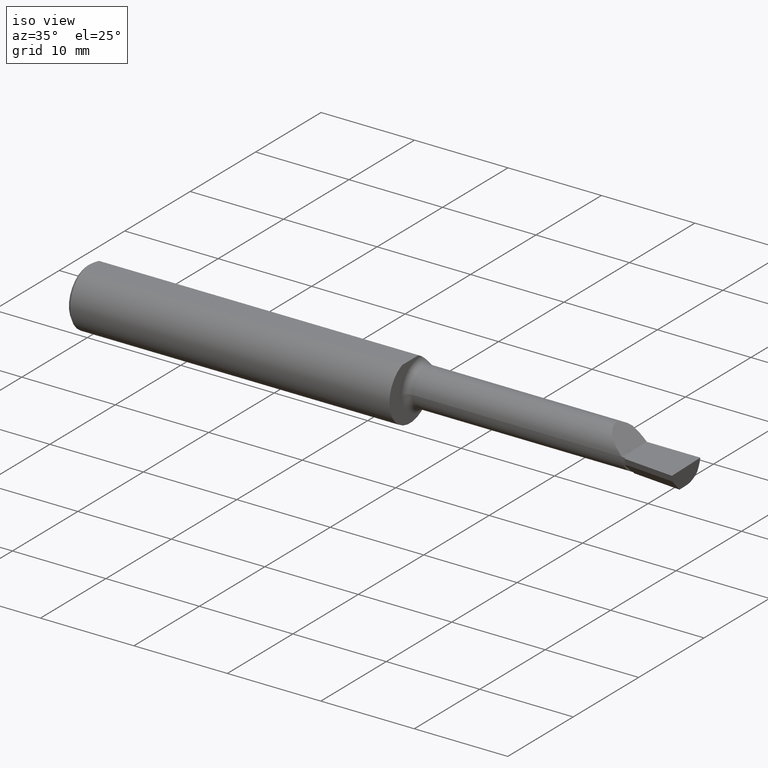
[diagram: clean part render]
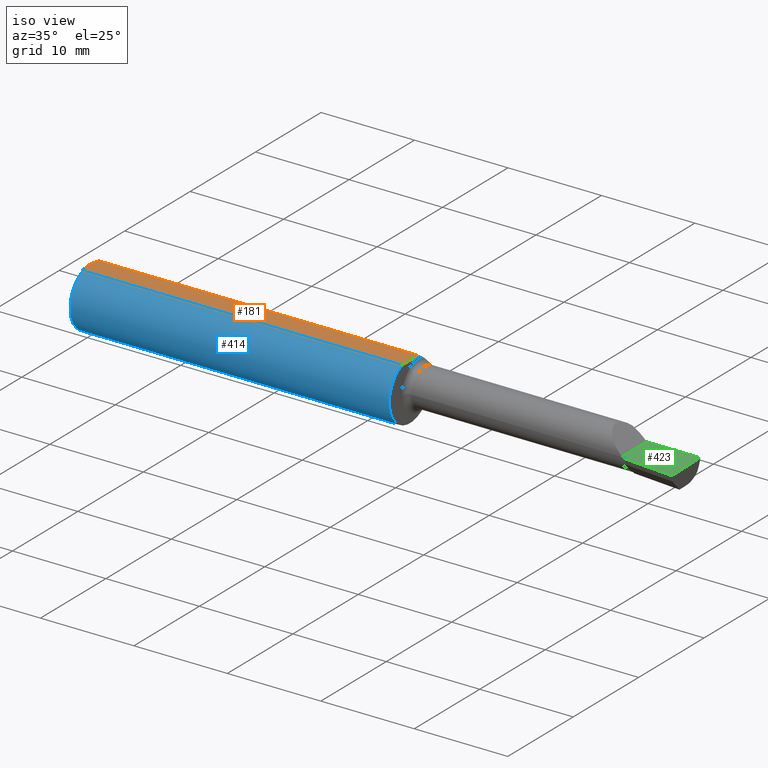
[diagram: same view with three faces highlighted in distinct colors, each labeled with its STEP entity id]
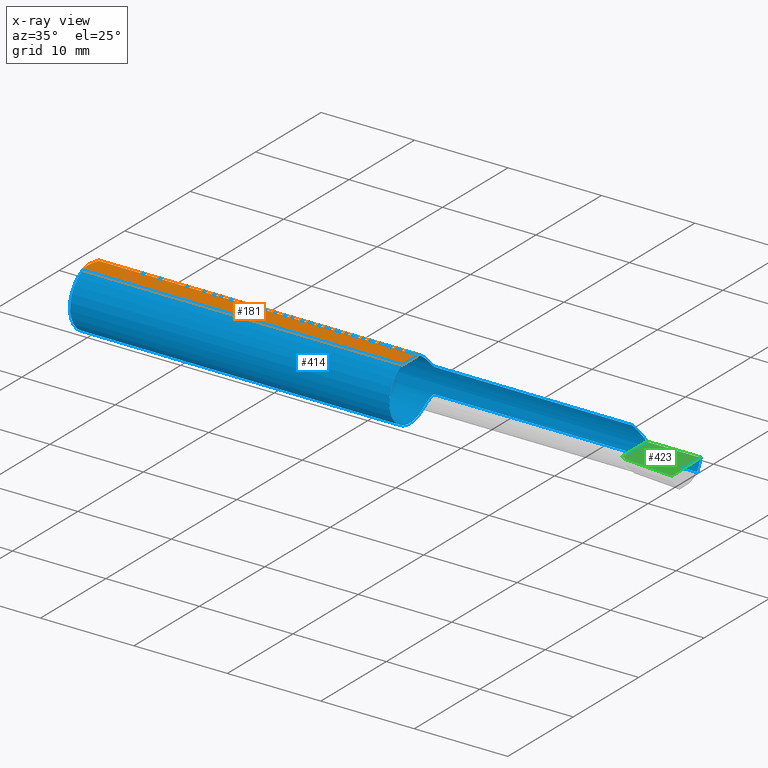
[diagram: x-ray of the same camera — body ghosted, the three highlighted faces saturated]
A machine part, iso view with three faces highlighted in distinct colors.
The next image is the same camera in x-ray (body ghosted, the three faces saturated) — at least one of them is partly hidden behind the body in this view.
Their STEP definitions:

[orange] entity #181 — the highlighted planar face has unit normal (0, -0, -1).
#16 = VERTEX_POINT ( 'NONE', #621 ) ;
#44 = CARTESIAN_POINT ( 'NONE',  ( 0.005000000000000195260, 0.008410227287019752737, 0.1148500000000000215 ) ) ;
#50 = DIRECTION ( 'NONE',  ( 0.000000000000000000, 1.000000000000000000, -4.882484975808304553E-17 ) ) ;
#66 = EDGE_LOOP ( 'NONE', ( #404, #118, #633, #629, #343 ) ) ;
#95 = B_SPLINE_CURVE_WITH_KNOTS ( 'NONE', 3,
 ( #696, #265, #369, #428, #468, #584 ),
 .UNSPECIFIED., .F., .F.,
 ( 4, 2, 4 ),
 ( 0.001029394377391489035, 0.001663875367397493060, 0.002298356357403497086 ),
 .UNSPECIFIED. ) ;
#118 = ORIENTED_EDGE ( 'NONE', *, *, #137, .T. ) ;
#120 = VECTOR ( 'NONE', #570, 39.37007874015748143 ) ;
#127 = DIRECTION ( 'NONE',  ( -1.000000000000000000, -0.000000000000000000, -0.000000000000000000 ) ) ;
#130 = VERTEX_POINT ( 'NONE', #371 ) ;
#137 = EDGE_CURVE ( 'NONE', #653, #130, #478, .T. ) ;
#168 = EDGE_CURVE ( 'NONE', #563, #16, #95, .T. ) ;
#181 = ADVANCED_FACE ( 'NONE', ( #644 ), #418, .F. ) ;
#182 = CARTESIAN_POINT ( 'NONE',  ( 0.01499999999999999077, -0.04895916665957456004, 0.1148500000000000215 ) ) ;
#192 = B_SPLINE_CURVE_WITH_KNOTS ( 'NONE', 3,
 ( #474, #44, #574, #680, #342, #289 ),
 .UNSPECIFIED., .F., .F.,
 ( 4, 2, 4 ),
 ( 0.002298356357403497086, 0.002932796277434359007, 0.003567236197465221362 ),
 .UNSPECIFIED. ) ;
#215 = DIRECTION ( 'NONE',  ( 0.000000000000000000, -4.882484975808304553E-17, -1.000000000000000000 ) ) ;
#217 = DIRECTION ( 'NONE',  ( 3.414809992080329023E-18, 1.000000000000000000, -4.882484975808304553E-17 ) ) ;
#257 = CARTESIAN_POINT ( 'NONE',  ( 1.360000000000000320, 0.1748500000000000054, 0.1148500000000000076 ) ) ;
#265 = CARTESIAN_POINT ( 'NONE',  ( 0.01195732443765552995, -0.04120008761723500251, 0.1148500000000000215 ) ) ;
#278 = VECTOR ( 'NONE', #217, 39.37007874015748143 ) ;
#289 = CARTESIAN_POINT ( 'NONE',  ( 0.01499999999999999424, 0.04895916665957457392, 0.1148500000000000076 ) ) ;
#295 = AXIS2_PLACEMENT_3D ( 'NONE', #420, #215, #50 ) ;
#309 = CARTESIAN_POINT ( 'NONE',  ( 1.360000000000000320, -0.04895916665957464331, 0.1148500000000000215 ) ) ;
#341 = CARTESIAN_POINT ( 'NONE',  ( 0.01499999999999999424, 0.04895916665957457392, 0.1148500000000000076 ) ) ;
#342 = CARTESIAN_POINT ( 'NONE',  ( 0.01193974418109659645, 0.04115525648180389656, 0.1148500000000000076 ) ) ;
#343 = ORIENTED_EDGE ( 'NONE', *, *, #168, .F. ) ;
#349 = LINE ( 'NONE', #619, #120 ) ;
#369 = CARTESIAN_POINT ( 'NONE',  ( 0.009415874254822530556, -0.03313958207962815899, 0.1148500000000000354 ) ) ;
#371 = CARTESIAN_POINT ( 'NONE',  ( 1.360000000000000320, 0.04895916665957456004, 0.1148500000000000076 ) ) ;
#404 = ORIENTED_EDGE ( 'NONE', *, *, #480, .F. ) ;
#418 = PLANE ( 'NONE',  #295 ) ;
#420 = CARTESIAN_POINT ( 'NONE',  ( 2.500000000000000000, 0.1748500000000000054, 0.1148500000000000076 ) ) ;
#428 = CARTESIAN_POINT ( 'NONE',  ( 0.005932194444709924276, -0.01671525318617307632, 0.1148500000000000215 ) ) ;
#461 = EDGE_CURVE ( 'NONE', #16, #536, #192, .T. ) ;
#468 = CARTESIAN_POINT ( 'NONE',  ( 0.005000000000000194393, -0.008410771716546810647, 0.1148500000000000076 ) ) ;
#474 = CARTESIAN_POINT ( 'NONE',  ( 0.005000000000000237761, 1.454187638523587873E-17, 0.1148500000000000076 ) ) ;
#478 = LINE ( 'NONE', #257, #278 ) ;
#480 = EDGE_CURVE ( 'NONE', #653, #563, #611, .T. ) ;
#497 = VECTOR ( 'NONE', #127, 39.37007874015748143 ) ;
#536 = VERTEX_POINT ( 'NONE', #341 ) ;
#563 = VERTEX_POINT ( 'NONE', #182 ) ;
#570 = DIRECTION ( 'NONE',  ( 1.000000000000000000, 0.000000000000000000, 0.000000000000000000 ) ) ;
#574 = CARTESIAN_POINT ( 'NONE',  ( 0.005947935873631423828, 0.01679708999422678192, 0.1148499999999999938 ) ) ;
#584 = CARTESIAN_POINT ( 'NONE',  ( 0.005000000000000237761, 1.454187638523587873E-17, 0.1148500000000000076 ) ) ;
#607 = CARTESIAN_POINT ( 'NONE',  ( 0.000000000000000000, -0.04895916665957456004, 0.1148500000000000076 ) ) ;
#611 = LINE ( 'NONE', #607, #497 ) ;
#619 = CARTESIAN_POINT ( 'NONE',  ( 0.000000000000000000, 0.04895916665957457392, 0.1148500000000000076 ) ) ;
#621 = CARTESIAN_POINT ( 'NONE',  ( 0.005000000000000237761, 1.454187638523587873E-17, 0.1148500000000000076 ) ) ;
#629 = ORIENTED_EDGE ( 'NONE', *, *, #461, .F. ) ;
#633 = ORIENTED_EDGE ( 'NONE', *, *, #691, .F. ) ;
#644 = FACE_OUTER_BOUND ( 'NONE', #66, .T. ) ;
#653 = VERTEX_POINT ( 'NONE', #309 ) ;
#680 = CARTESIAN_POINT ( 'NONE',  ( 0.009410502401328815075, 0.03310661131402416885, 0.1148500000000000076 ) ) ;
#691 = EDGE_CURVE ( 'NONE', #536, #130, #349, .T. ) ;
#696 = CARTESIAN_POINT ( 'NONE',  ( 0.01499999999999999077, -0.04895916665957456004, 0.1148500000000000215 ) ) ;

[blue] entity #414 — the highlighted cylindrical surface (edge-blend (fillet) strip) has radius 3.1712 mm, axis along (-1, -0, -0).
#1 = CARTESIAN_POINT ( 'NONE',  ( 4.111069666048746882E-31, 0.1248499999999999888, 9.802154982235641300E-16 ) ) ;
#2 = VERTEX_POINT ( 'NONE', #618 ) ;
#11 = ORIENTED_EDGE ( 'NONE', *, *, #61, .T. ) ;
#18 = B_SPLINE_CURVE_WITH_KNOTS ( 'NONE', 3,
 ( #198, #409, #506, #413, #630, #292, #360, #243, #140, #91, #249, #573, #352, #27 ),
 .UNSPECIFIED., .F., .F.,
 ( 4, 2, 2, 2, 2, 2, 4 ),
 ( 6.218642020841400790E-05, 0.0005341583913332120011, 0.001006130362458009832, 0.001478102333582808747, 0.001714088319145203433, 0.001832081311926394163, 0.001950074304707585110 ),
 .UNSPECIFIED. ) ;
#24 = VECTOR ( 'NONE', #313, 39.37007874015748143 ) ;
#27 = CARTESIAN_POINT ( 'NONE',  ( 1.385000000000000009, 0.1133222222222218939, 0.05239843939104803922 ) ) ;
#28 = EDGE_CURVE ( 'NONE', #681, #673, #18, .T. ) ;
#38 = CARTESIAN_POINT ( 'NONE',  ( 1.385000000000000009, 0.1133222222222218939, 0.05239843939104803922 ) ) ;
#58 = AXIS2_PLACEMENT_3D ( 'NONE', #396, #613, #676 ) ;
#59 = CARTESIAN_POINT ( 'NONE',  ( 1.834999999999999964, 0.1133222222222221853, 0.05239843939104762288 ) ) ;
#61 = EDGE_CURVE ( 'NONE', #130, #681, #597, .T. ) ;
#62 = DIRECTION ( 'NONE',  ( 1.000000000000000000, -3.414809992080329023E-18, 0.000000000000000000 ) ) ;
#77 = CARTESIAN_POINT ( 'NONE',  ( 1.366709462345916393, 0.1014961360546397240, -0.07295290821911747103 ) ) ;
#84 = ORIENTED_EDGE ( 'NONE', *, *, #85, .T. ) ;
#85 = EDGE_CURVE ( 'NONE', #178, #340, #532, .T. ) ;
#90 = ORIENTED_EDGE ( 'NONE', *, *, #502, .T. ) ;
#91 = CARTESIAN_POINT ( 'NONE',  ( 1.378003366130775342, 0.1118869025553485413, 0.05540929543234639210 ) ) ;
#110 = FACE_OUTER_BOUND ( 'NONE', #438, .T. ) ;
#112 = CARTESIAN_POINT ( 'NONE',  ( 0.01499999999999999424, 0.000000000000000000, 0.000000000000000000 ) ) ;
#120 = VECTOR ( 'NONE', #570, 39.37007874015748143 ) ;
#121 = DIRECTION ( 'NONE',  ( 0.000000000000000000, 0.000000000000000000, 1.000000000000000000 ) ) ;
#124 = LINE ( 'NONE', #59, #433 ) ;
#127 = DIRECTION ( 'NONE',  ( -1.000000000000000000, -0.000000000000000000, -0.000000000000000000 ) ) ;
#130 = VERTEX_POINT ( 'NONE', #371 ) ;
#131 = CARTESIAN_POINT ( 'NONE',  ( 1.378018389903473695, 0.1118940578004063713, -0.05539504279880069076 ) ) ;
#132 = VECTOR ( 'NONE', #495, 39.37007874015748143 ) ;
#135 = CARTESIAN_POINT ( 'NONE',  ( 1.363310246323733432, 0.09402499227299722373, -0.08235832246780973309 ) ) ;
#140 = CARTESIAN_POINT ( 'NONE',  ( 1.374891482046761704, 0.1103130882036812976, 0.05851436580809191851 ) ) ;
#143 = CARTESIAN_POINT ( 'NONE',  ( 1.379195140613335591, 0.1123729516825155567, -0.05441079362540626740 ) ) ;
#146 = CARTESIAN_POINT ( 'NONE',  ( 2.489336331022029114, 0.1133222222222221853, -0.05239843939104762288 ) ) ;
#150 = VERTEX_POINT ( 'NONE', #375 ) ;
#167 = CARTESIAN_POINT ( 'NONE',  ( 1.360000000000000320, 0.000000000000000000, 0.000000000000000000 ) ) ;
#178 = VERTEX_POINT ( 'NONE', #205 ) ;
#182 = CARTESIAN_POINT ( 'NONE',  ( 0.01499999999999999077, -0.04895916665957456004, 0.1148500000000000215 ) ) ;
#190 = AXIS2_PLACEMENT_3D ( 'NONE', #112, #430, #121 ) ;
#193 = ORIENTED_EDGE ( 'NONE', *, *, #315, .T. ) ;
#198 = CARTESIAN_POINT ( 'NONE',  ( 1.360000000000000320, 0.07089166666666647798, 0.1027710761704004605 ) ) ;
#199 = CARTESIAN_POINT ( 'NONE',  ( 2.495231497323687986, 0.1248499999999998639, -6.635442975774731131E-17 ) ) ;
#201 = CARTESIAN_POINT ( 'NONE',  ( 1.374878942730255460, 0.1103076286869486416, -0.05852540734030661079 ) ) ;
#205 = CARTESIAN_POINT ( 'NONE',  ( 1.385000000000000009, 0.1133222222222218800, -0.05239843939104806697 ) ) ;
#221 = VERTEX_POINT ( 'NONE', #526 ) ;
#243 = CARTESIAN_POINT ( 'NONE',  ( 1.373217602974939444, 0.1090277136498275096, 0.06089509507572603980 ) ) ;
#244 = CARTESIAN_POINT ( 'NONE',  ( 1.834999999999999964, 0.1133222222222221853, -0.05239843939104762288 ) ) ;
#249 = CARTESIAN_POINT ( 'NONE',  ( 1.379156347344548506, 0.1123603976562047441, 0.05443691454869414859 ) ) ;
#251 = CARTESIAN_POINT ( 'NONE',  ( 2.491084417918584037, 0.1209466293052442742, -0.03590911711702338832 ) ) ;
#253 = CIRCLE ( 'NONE', #643, 0.1248500000000000026 ) ;
#261 = EDGE_CURVE ( 'NONE', #2, #563, #489, .T. ) ;
#271 = LINE ( 'NONE', #1, #132 ) ;
#274 = CARTESIAN_POINT ( 'NONE',  ( 2.495231497323687986, 0.1248499999999998639, -6.635442975774731131E-17 ) ) ;
#280 = CARTESIAN_POINT ( 'NONE',  ( 2.217601560608951861, 0.1133222222222222408, 0.05239843939104755349 ) ) ;
#292 = CARTESIAN_POINT ( 'NONE',  ( 1.366702553529778097, 0.1014824713796362576, 0.07297083456247581423 ) ) ;
#303 = CARTESIAN_POINT ( 'NONE',  ( 1.362089430766777909, 0.08992021952243373084, -0.08683155323701839678 ) ) ;
#307 = ORIENTED_EDGE ( 'NONE', *, *, #337, .T. ) ;
#309 = CARTESIAN_POINT ( 'NONE',  ( 1.360000000000000320, -0.04895916665957464331, 0.1148500000000000215 ) ) ;
#313 = DIRECTION ( 'NONE',  ( -1.000000000000000000, 3.414809992080329023E-18, -0.000000000000000000 ) ) ;
#315 = EDGE_CURVE ( 'NONE', #673, #330, #124, .T. ) ;
#323 = CYLINDRICAL_SURFACE ( 'NONE', #469, 0.1248500000000000026 ) ;
#330 = VERTEX_POINT ( 'NONE', #280 ) ;
#334 = CARTESIAN_POINT ( 'NONE',  ( 2.234090882882976192, 0.1209466293052442742, 0.03590911711702333281 ) ) ;
#337 = EDGE_CURVE ( 'NONE', #340, #653, #685, .T. ) ;
#339 = CARTESIAN_POINT ( 'NONE',  ( 2.493080554539725657, 0.1248500000000000165, -0.01816670945505174245 ) ) ;
#340 = VERTEX_POINT ( 'NONE', #593 ) ;
#341 = CARTESIAN_POINT ( 'NONE',  ( 0.01499999999999999424, 0.04895916665957457392, 0.1148500000000000076 ) ) ;
#346 = CARTESIAN_POINT ( 'NONE',  ( 0.01499999999999999424, 0.000000000000000000, 0.000000000000000000 ) ) ;
#349 = LINE ( 'NONE', #619, #120 ) ;
#352 = CARTESIAN_POINT ( 'NONE',  ( 1.383393805215130223, 0.1133222222232594112, 0.05239843938880466706 ) ) ;
#355 = CARTESIAN_POINT ( 'NONE',  ( 1.373205018706407099, 0.1090156405642967868, -0.06091562844815698319 ) ) ;
#360 = CARTESIAN_POINT ( 'NONE',  ( 1.368812999615358850, 0.1047986892473501408, 0.06808587976958131727 ) ) ;
#363 = LINE ( 'NONE', #244, #24 ) ;
#371 = CARTESIAN_POINT ( 'NONE',  ( 1.360000000000000320, 0.04895916665957456004, 0.1148500000000000076 ) ) ;
#375 = CARTESIAN_POINT ( 'NONE',  ( 2.270000000000000018, 0.1248499999999998639, 2.816687638038912303E-17 ) ) ;
#376 = AXIS2_PLACEMENT_3D ( 'NONE', #167, #604, #377 ) ;
#377 = DIRECTION ( 'NONE',  ( 0.000000000000000000, -1.000000000000000000, 0.000000000000000000 ) ) ;
#381 = EDGE_CURVE ( 'NONE', #150, #595, #271, .T. ) ;
#396 = CARTESIAN_POINT ( 'NONE',  ( 1.360000000000000320, 0.000000000000000000, 0.000000000000000000 ) ) ;
#398 =( BOUNDED_CURVE ( )  B_SPLINE_CURVE ( 3, ( #542, #334, #610, #659 ),
 .UNSPECIFIED., .F., .T. ) 
 B_SPLINE_CURVE_WITH_KNOTS ( ( 4, 4 ),
 ( 1.137691307532139984, 1.570796326794897668 ),
 .UNSPECIFIED. ) 
 CURVE ( )  GEOMETRIC_REPRESENTATION_ITEM ( )  RATIONAL_B_SPLINE_CURVE ( ( 1.000000000000000000, 0.9844293286710339430, 0.9844293286710339430, 1.000000000000000000 ) ) 
 REPRESENTATION_ITEM ( '' )  );
#401 = CARTESIAN_POINT ( 'NONE',  ( 1.381867218484672977, 0.1130881303947557509, -0.05290831216932034148 ) ) ;
#405 = CARTESIAN_POINT ( 'NONE',  ( 1.383397973893800703, 0.1133222222222220188, -0.05239843939104803228 ) ) ;
#409 = CARTESIAN_POINT ( 'NONE',  ( 1.359999999999996989, 0.07604212793636061507, 0.09921827904968805178 ) ) ;
#412 = ORIENTED_EDGE ( 'NONE', *, *, #381, .T. ) ;
#413 = CARTESIAN_POINT ( 'NONE',  ( 1.362066153268988833, 0.08982957272875664867, 0.08692514756739067039 ) ) ;
#414 = ADVANCED_FACE ( 'NONE', ( #110 ), #323, .T. ) ;
#430 = DIRECTION ( 'NONE',  ( -1.000000000000000000, -0.000000000000000000, -0.000000000000000000 ) ) ;
#433 = VECTOR ( 'NONE', #62, 39.37007874015748143 ) ;
#438 = EDGE_LOOP ( 'NONE', ( #412, #90, #617, #84, #307, #612, #647, #447, #540, #11, #624, #193, #599 ) ) ;
#447 = ORIENTED_EDGE ( 'NONE', *, *, #590, .F. ) ;
#451 = DIRECTION ( 'NONE',  ( 0.000000000000000000, 0.000000000000000000, 1.000000000000000000 ) ) ;
#456 = CARTESIAN_POINT ( 'NONE',  ( 1.360000000000000320, 0.07089166666666647798, -0.1027710761704004605 ) ) ;
#469 = AXIS2_PLACEMENT_3D ( 'NONE', #533, #598, #698 ) ;
#480 = EDGE_CURVE ( 'NONE', #653, #563, #611, .T. ) ;
#489 = CIRCLE ( 'NONE', #190, 0.1248500000000000026 ) ;
#495 = DIRECTION ( 'NONE',  ( 1.000000000000000000, 0.000000000000000000, 0.000000000000000000 ) ) ;
#497 = VECTOR ( 'NONE', #127, 39.37007874015748143 ) ;
#502 = EDGE_CURVE ( 'NONE', #595, #221, #559, .T. ) ;
#506 = CARTESIAN_POINT ( 'NONE',  ( 1.360418395875213848, 0.08085314529530858441, 0.09533153891603421415 ) ) ;
#517 = CARTESIAN_POINT ( 'NONE',  ( 1.360429435078794880, 0.08094870196673302487, -0.09525057567498929068 ) ) ;
#526 = CARTESIAN_POINT ( 'NONE',  ( 2.489336331022029114, 0.1133222222222221853, -0.05239843939104762288 ) ) ;
#532 = B_SPLINE_CURVE_WITH_KNOTS ( 'NONE', 3,
 ( #625, #405, #401, #143, #131, #201, #355, #568, #77, #135, #303, #517, #561, #456 ),
 .UNSPECIFIED., .F., .F.,
 ( 4, 2, 2, 2, 2, 2, 4 ),
 ( 1.961860195742902937E-07, 0.0001199556417434000105, 0.0002397150974672257147, 0.0004792340089148628118, 0.0009582718318101474684, 0.001437309654705432775, 0.001916347477600717757 ),
 .UNSPECIFIED. ) ;
#533 = CARTESIAN_POINT ( 'NONE',  ( 0.000000000000000000, 0.000000000000000000, 0.000000000000000000 ) ) ;
#536 = VERTEX_POINT ( 'NONE', #341 ) ;
#540 = ORIENTED_EDGE ( 'NONE', *, *, #691, .T. ) ;
#542 = CARTESIAN_POINT ( 'NONE',  ( 2.217601560608951861, 0.1133222222222222408, 0.05239843939104755349 ) ) ;
#557 = DIRECTION ( 'NONE',  ( -1.000000000000000000, -0.000000000000000000, -0.000000000000000000 ) ) ;
#558 = EDGE_CURVE ( 'NONE', #330, #150, #398, .T. ) ;
#559 =( BOUNDED_CURVE ( )  B_SPLINE_CURVE ( 3, ( #199, #339, #251, #146 ),
 .UNSPECIFIED., .F., .F. ) 
 B_SPLINE_CURVE_WITH_KNOTS ( ( 4, 4 ),
 ( 4.934903206476703552, 5.368008225739460570 ),
 .UNSPECIFIED. ) 
 CURVE ( )  GEOMETRIC_REPRESENTATION_ITEM ( )  RATIONAL_B_SPLINE_CURVE ( ( 1.000000000000000000, 0.9844293286710339430, 0.9844293286710339430, 1.000000000000000000 ) ) 
 REPRESENTATION_ITEM ( '' )  );
#561 = CARTESIAN_POINT ( 'NONE',  ( 1.360000000000000542, 0.07605073478940813092, -0.09921234202752142461 ) ) ;
#563 = VERTEX_POINT ( 'NONE', #182 ) ;
#568 = CARTESIAN_POINT ( 'NONE',  ( 1.368837986083220271, 0.1048226606062675342, -0.06804511026469654833 ) ) ;
#570 = DIRECTION ( 'NONE',  ( 1.000000000000000000, 0.000000000000000000, 0.000000000000000000 ) ) ;
#573 = CARTESIAN_POINT ( 'NONE',  ( 1.381855009147951785, 0.1130869929873384028, 0.05291095013439051087 ) ) ;
#590 = EDGE_CURVE ( 'NONE', #536, #2, #253, .T. ) ;
#593 = CARTESIAN_POINT ( 'NONE',  ( 1.360000000000000320, 0.07089166666666647798, -0.1027710761704004605 ) ) ;
#595 = VERTEX_POINT ( 'NONE', #274 ) ;
#597 = CIRCLE ( 'NONE', #58, 0.1248500000000000026 ) ;
#598 = DIRECTION ( 'NONE',  ( -1.000000000000000000, -0.000000000000000000, -0.000000000000000000 ) ) ;
#599 = ORIENTED_EDGE ( 'NONE', *, *, #558, .T. ) ;
#604 = DIRECTION ( 'NONE',  ( -1.000000000000000000, 3.414809992080329023E-18, -0.000000000000000000 ) ) ;
#607 = CARTESIAN_POINT ( 'NONE',  ( 0.000000000000000000, -0.04895916665957456004, 0.1148500000000000076 ) ) ;
#610 = CARTESIAN_POINT ( 'NONE',  ( 2.251833290544947630, 0.1248500000000000165, 0.01816670945505166612 ) ) ;
#611 = LINE ( 'NONE', #607, #497 ) ;
#612 = ORIENTED_EDGE ( 'NONE', *, *, #480, .T. ) ;
#613 = DIRECTION ( 'NONE',  ( -1.000000000000000000, 3.414809992080329023E-18, -0.000000000000000000 ) ) ;
#617 = ORIENTED_EDGE ( 'NONE', *, *, #682, .T. ) ;
#618 = CARTESIAN_POINT ( 'NONE',  ( 0.01499999999999999424, 0.000000000000000000, -0.1248500000000000026 ) ) ;
#619 = CARTESIAN_POINT ( 'NONE',  ( 0.000000000000000000, 0.04895916665957457392, 0.1148500000000000076 ) ) ;
#624 = ORIENTED_EDGE ( 'NONE', *, *, #28, .T. ) ;
#625 = CARTESIAN_POINT ( 'NONE',  ( 1.385000000000000009, 0.1133222222222218800, -0.05239843939104806697 ) ) ;
#630 = CARTESIAN_POINT ( 'NONE',  ( 1.363311842522018980, 0.09402697795089787203, 0.08235509766544063526 ) ) ;
#643 = AXIS2_PLACEMENT_3D ( 'NONE', #346, #557, #451 ) ;
#647 = ORIENTED_EDGE ( 'NONE', *, *, #261, .F. ) ;
#653 = VERTEX_POINT ( 'NONE', #309 ) ;
#659 = CARTESIAN_POINT ( 'NONE',  ( 2.270000000000000018, 0.1248499999999998639, 2.816687638038912303E-17 ) ) ;
#673 = VERTEX_POINT ( 'NONE', #38 ) ;
#676 = DIRECTION ( 'NONE',  ( 0.000000000000000000, -1.000000000000000000, 0.000000000000000000 ) ) ;
#681 = VERTEX_POINT ( 'NONE', #689 ) ;
#682 = EDGE_CURVE ( 'NONE', #221, #178, #363, .T. ) ;
#685 = CIRCLE ( 'NONE', #376, 0.1248500000000000026 ) ;
#689 = CARTESIAN_POINT ( 'NONE',  ( 1.360000000000000320, 0.07089166666666647798, 0.1027710761704004605 ) ) ;
#691 = EDGE_CURVE ( 'NONE', #536, #130, #349, .T. ) ;
#698 = DIRECTION ( 'NONE',  ( 0.000000000000000000, 0.000000000000000000, 1.000000000000000000 ) ) ;

[green] entity #423 — the highlighted planar face has unit normal (-0, 0, -1).
#1 = CARTESIAN_POINT ( 'NONE',  ( 4.111069666048746882E-31, 0.1248499999999999888, 9.802154982235641300E-16 ) ) ;
#3 = AXIS2_PLACEMENT_3D ( 'NONE', #153, #365, #449 ) ;
#8 = CARTESIAN_POINT ( 'NONE',  ( -2.702822108727469846E-19, -0.02515000000000001262, 9.802154982235641300E-16 ) ) ;
#12 = DIRECTION ( 'NONE',  ( -0.000000000000000000, 1.000000000000000000, -0.000000000000000000 ) ) ;
#32 = DIRECTION ( 'NONE',  ( -3.414809992080329408E-18, -1.000000000000000000, 1.432187289346423802E-33 ) ) ;
#34 = EDGE_CURVE ( 'NONE', #436, #359, #564, .T. ) ;
#36 = CARTESIAN_POINT ( 'NONE',  ( 2.285000000000000142, -0.02515000000000000221, 0.000000000000000000 ) ) ;
#37 = VECTOR ( 'NONE', #503, 39.37007874015748854 ) ;
#64 = DIRECTION ( 'NONE',  ( 1.000000000000000000, -3.414809992080329023E-18, 0.000000000000000000 ) ) ;
#68 = VECTOR ( 'NONE', #601, 39.37007874015748143 ) ;
#87 = VERTEX_POINT ( 'NONE', #36 ) ;
#113 = ORIENTED_EDGE ( 'NONE', *, *, #631, .F. ) ;
#132 = VECTOR ( 'NONE', #495, 39.37007874015748143 ) ;
#147 = EDGE_LOOP ( 'NONE', ( #513, #378, #351, #113, #620, #663 ) ) ;
#150 = VERTEX_POINT ( 'NONE', #375 ) ;
#153 = CARTESIAN_POINT ( 'NONE',  ( 2.500000000000000000, -0.2500000000000000555, -6.829619984160658046E-17 ) ) ;
#154 = VECTOR ( 'NONE', #12, 39.37007874015748143 ) ;
#157 = LINE ( 'NONE', #383, #68 ) ;
#194 = CARTESIAN_POINT ( 'NONE',  ( 2.518780375369936486, -0.05495834446916381122, -7.617277714937992982E-17 ) ) ;
#197 = VECTOR ( 'NONE', #64, 39.37007874015748143 ) ;
#203 = CARTESIAN_POINT ( 'NONE',  ( 2.270000000000000018, -0.02515000000000007160, 2.816687638038912303E-17 ) ) ;
#206 = LINE ( 'NONE', #304, #327 ) ;
#220 = FACE_OUTER_BOUND ( 'NONE', #147, .T. ) ;
#240 = EDGE_CURVE ( 'NONE', #359, #595, #157, .T. ) ;
#271 = LINE ( 'NONE', #1, #132 ) ;
#274 = CARTESIAN_POINT ( 'NONE',  ( 2.495231497323687986, 0.1248499999999998639, -6.635442975774731131E-17 ) ) ;
#304 = CARTESIAN_POINT ( 'NONE',  ( 2.285000000000000142, -0.2500000000000000555, 2.187580619199813988E-17 ) ) ;
#327 = VECTOR ( 'NONE', #32, 39.37007874015748143 ) ;
#351 = ORIENTED_EDGE ( 'NONE', *, *, #381, .F. ) ;
#359 = VERTEX_POINT ( 'NONE', #660 ) ;
#365 = DIRECTION ( 'NONE',  ( -4.194046792260684025E-16, 0.000000000000000000, -1.000000000000000000 ) ) ;
#375 = CARTESIAN_POINT ( 'NONE',  ( 2.270000000000000018, 0.1248499999999998639, 2.816687638038912303E-17 ) ) ;
#378 = ORIENTED_EDGE ( 'NONE', *, *, #240, .T. ) ;
#381 = EDGE_CURVE ( 'NONE', #150, #595, #271, .T. ) ;
#383 = CARTESIAN_POINT ( 'NONE',  ( 2.505269699852777698, -0.2498588282143183736, -7.050633661797842283E-17 ) ) ;
#423 = ADVANCED_FACE ( 'NONE', ( #220 ), #665, .F. ) ;
#436 = VERTEX_POINT ( 'NONE', #628 ) ;
#449 = DIRECTION ( 'NONE',  ( -1.000000000000000000, 0.000000000000000000, 4.194046792260684025E-16 ) ) ;
#458 = VERTEX_POINT ( 'NONE', #203 ) ;
#494 = LINE ( 'NONE', #545, #154 ) ;
#495 = DIRECTION ( 'NONE',  ( 1.000000000000000000, 0.000000000000000000, 0.000000000000000000 ) ) ;
#503 = DIRECTION ( 'NONE',  ( 0.9953961983671787417, -0.09584575252022407843, -4.191050267207092874E-16 ) ) ;
#513 = ORIENTED_EDGE ( 'NONE', *, *, #34, .T. ) ;
#545 = CARTESIAN_POINT ( 'NONE',  ( 2.270000000000000018, -0.2500000000000000555, 2.816687638038912303E-17 ) ) ;
#564 = LINE ( 'NONE', #194, #37 ) ;
#565 = EDGE_CURVE ( 'NONE', #458, #87, #654, .T. ) ;
#595 = VERTEX_POINT ( 'NONE', #274 ) ;
#601 = DIRECTION ( 'NONE',  ( -0.02677973311239241830, 0.9996413586354002678, 1.107638118500693115E-17 ) ) ;
#620 = ORIENTED_EDGE ( 'NONE', *, *, #565, .T. ) ;
#628 = CARTESIAN_POINT ( 'NONE',  ( 2.285000000000000142, -0.03244785463752931920, 2.187612651176460665E-17 ) ) ;
#631 = EDGE_CURVE ( 'NONE', #458, #150, #494, .T. ) ;
#654 = LINE ( 'NONE', #8, #197 ) ;
#656 = EDGE_CURVE ( 'NONE', #87, #436, #206, .T. ) ;
#660 = CARTESIAN_POINT ( 'NONE',  ( 2.500000000000000444, -0.05315000000000020403, 2.561107494060246767E-17 ) ) ;
#663 = ORIENTED_EDGE ( 'NONE', *, *, #656, .T. ) ;
#665 = PLANE ( 'NONE',  #3 ) ;